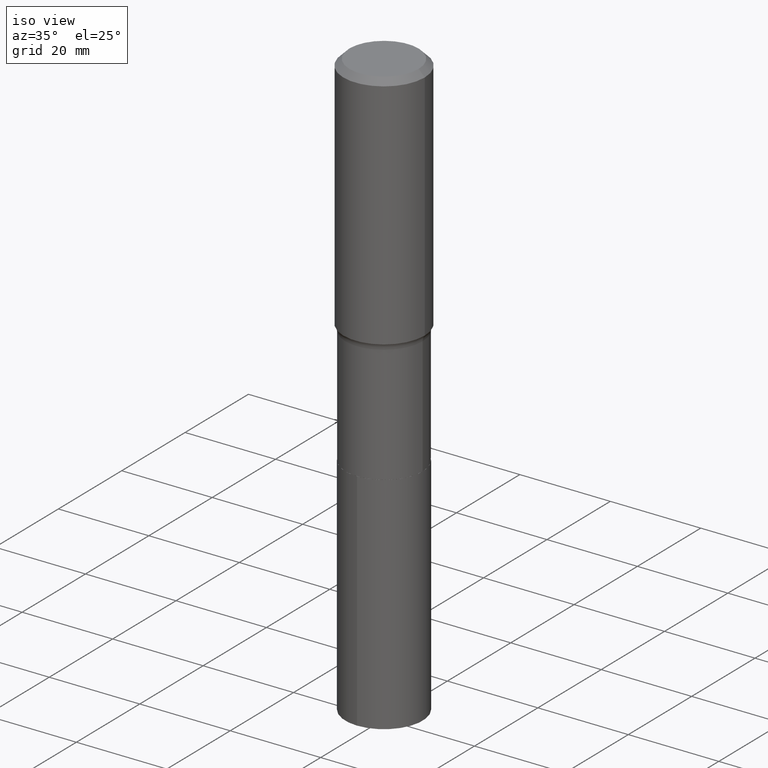
[diagram: clean part render]
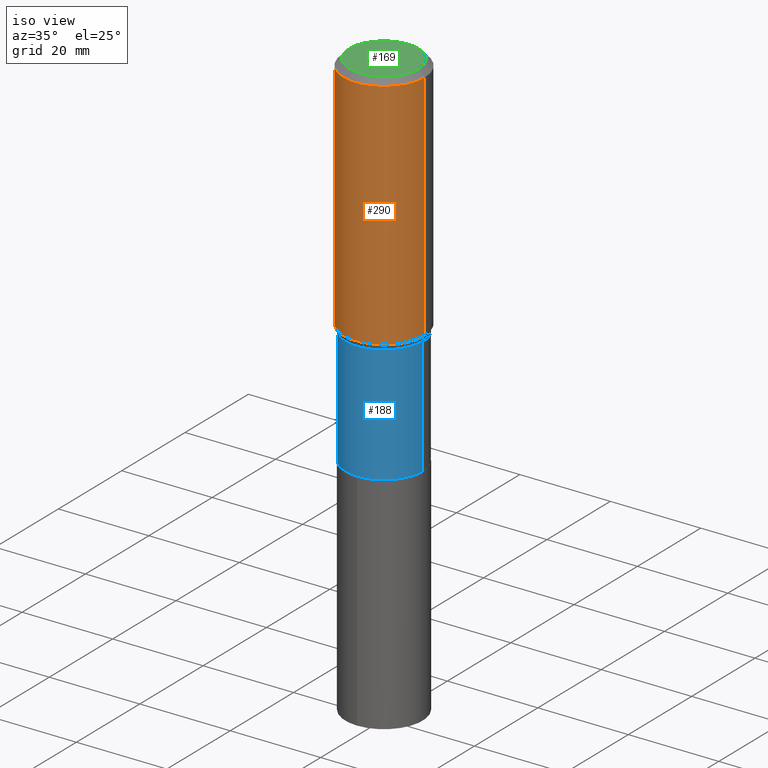
[diagram: same view with three faces highlighted in distinct colors, each labeled with its STEP entity id]
A machine part, iso view with three faces highlighted in distinct colors.
Their STEP definitions:

[orange] entity #290 — the highlighted cylindrical surface (partial cylindrical patch) has radius 9.0005 mm, axis along (-0, 0, 1).
#2 = DIRECTION ( 'NONE',  ( -2.445468806185136597E-29, 3.491481338843145583E-15, 1.000000000000000000 ) ) ;
#11 = CARTESIAN_POINT ( 'NONE',  ( 0.000000000000000000, 0.000000000000000000, 0.000000000000000000 ) ) ;
#13 = ORIENTED_EDGE ( 'NONE', *, *, #402, .F. ) ;
#22 = VERTEX_POINT ( 'NONE', #180 ) ;
#44 = VECTOR ( 'NONE', #407, 39.37007874015748143 ) ;
#51 = VERTEX_POINT ( 'NONE', #216 ) ;
#74 = CARTESIAN_POINT ( 'NONE',  ( 5.094538759496551369E-29, -7.273651155887488989E-15, -2.083256489148962221 ) ) ;
#80 = LINE ( 'NONE', #400, #172 ) ;
#98 = VERTEX_POINT ( 'NONE', #105 ) ;
#99 = ORIENTED_EDGE ( 'NONE', *, *, #389, .T. ) ;
#105 = CARTESIAN_POINT ( 'NONE',  ( -0.3543500000000002759, -4.755842971721572810E-15, -2.083256489148962221 ) ) ;
#116 = ORIENTED_EDGE ( 'NONE', *, *, #263, .T. ) ;
#119 = DIRECTION ( 'NONE',  ( 1.000000000000000000, -6.982962677686265922E-15, 4.876176775795935793E-29 ) ) ;
#136 = CIRCLE ( 'NONE', #194, 0.3543499999999999983 ) ;
#138 = VERTEX_POINT ( 'NONE', #426 ) ;
#154 = DIRECTION ( 'NONE',  ( 1.000000000000000000, -6.982962677686265922E-15, 0.000000000000000000 ) ) ;
#158 = DIRECTION ( 'NONE',  ( -2.445468806185136877E-29, 3.491481338843145188E-15, 1.000000000000000000 ) ) ;
#172 = VECTOR ( 'NONE', #158, 39.37007874015748143 ) ;
#180 = CARTESIAN_POINT ( 'NONE',  ( 0.3543499999999999983, -2.659993786700990565E-15, -0.05315250000000043551 ) ) ;
#194 = AXIS2_PLACEMENT_3D ( 'NONE', #195, #332, #335 ) ;
#195 = CARTESIAN_POINT ( 'NONE',  ( 1.299827807207565248E-30, -1.855809618628617968E-16, -0.05315250000000043551 ) ) ;
#216 = CARTESIAN_POINT ( 'NONE',  ( 0.3543500000000002759, -9.748063980725620445E-15, -2.083256489148962221 ) ) ;
#224 = AXIS2_PLACEMENT_3D ( 'NONE', #74, #269, #154 ) ;
#263 = EDGE_CURVE ( 'NONE', #98, #51, #422, .T. ) ;
#268 = LINE ( 'NONE', #271, #44 ) ;
#269 = DIRECTION ( 'NONE',  ( -2.445468806185136597E-29, 3.491481338843145583E-15, 1.000000000000000000 ) ) ;
#271 = CARTESIAN_POINT ( 'NONE',  ( 0.3543500000000001648, -2.474412824838129483E-15, 1.727873240503290590E-29 ) ) ;
#290 = ADVANCED_FACE ( 'NONE', ( #304 ), #443, .T. ) ;
#304 = FACE_OUTER_BOUND ( 'NONE', #349, .T. ) ;
#332 = DIRECTION ( 'NONE',  ( -2.445468806185136597E-29, 3.491481338843145583E-15, 1.000000000000000000 ) ) ;
#335 = DIRECTION ( 'NONE',  ( 1.000000000000000000, -6.982962677686266711E-15, 0.000000000000000000 ) ) ;
#349 = EDGE_LOOP ( 'NONE', ( #13, #116, #99, #438 ) ) ;
#358 = EDGE_CURVE ( 'NONE', #138, #22, #136, .T. ) ;
#389 = EDGE_CURVE ( 'NONE', #51, #22, #268, .T. ) ;
#400 = CARTESIAN_POINT ( 'NONE',  ( -0.3543500000000001648, 2.517808184165916180E-15, -1.743024649231826627E-29 ) ) ;
#402 = EDGE_CURVE ( 'NONE', #98, #138, #80, .T. ) ;
#407 = DIRECTION ( 'NONE',  ( -2.445468806185136877E-29, 3.491481338843145188E-15, 1.000000000000000000 ) ) ;
#410 = AXIS2_PLACEMENT_3D ( 'NONE', #11, #2, #119 ) ;
#422 = CIRCLE ( 'NONE', #224, 0.3543500000000002759 ) ;
#426 = CARTESIAN_POINT ( 'NONE',  ( -0.3543499999999999983, -1.211807874709259447E-15, -0.05315250000000043551 ) ) ;
#438 = ORIENTED_EDGE ( 'NONE', *, *, #358, .F. ) ;
#443 = CYLINDRICAL_SURFACE ( 'NONE', #410, 0.3543500000000001648 ) ;

[blue] entity #188 — the highlighted cylindrical surface (partial cylindrical patch) has radius 8.5331 mm, axis along (-0, 0, 1).
#10 = VERTEX_POINT ( 'NONE', #69 ) ;
#31 = DIRECTION ( 'NONE',  ( -2.445468806185136877E-29, 3.491481338843145188E-15, 1.000000000000000000 ) ) ;
#41 = FACE_OUTER_BOUND ( 'NONE', #244, .T. ) ;
#57 = ORIENTED_EDGE ( 'NONE', *, *, #462, .F. ) ;
#59 = ORIENTED_EDGE ( 'NONE', *, *, #64, .T. ) ;
#64 = EDGE_CURVE ( 'NONE', #112, #270, #292, .T. ) ;
#68 = CARTESIAN_POINT ( 'NONE',  ( -0.3359499999999999154, -6.849470987056543290E-15, -2.134300000000000086 ) ) ;
#69 = CARTESIAN_POINT ( 'NONE',  ( -0.3359500000000000819, -6.849470987056542502E-15, -3.156600000000000072 ) ) ;
#76 = DIRECTION ( 'NONE',  ( -2.445468806185136877E-29, 3.491481338843145188E-15, 1.000000000000000000 ) ) ;
#110 = LINE ( 'NONE', #191, #329 ) ;
#112 = VERTEX_POINT ( 'NONE', #327 ) ;
#135 = VECTOR ( 'NONE', #31, 39.37007874015748143 ) ;
#146 = CARTESIAN_POINT ( 'NONE',  ( 5.219364073040937564E-29, -7.451868621492925956E-15, -2.134300000000000086 ) ) ;
#188 = ADVANCED_FACE ( 'NONE', ( #41 ), #405, .T. ) ;
#191 = CARTESIAN_POINT ( 'NONE',  ( -0.3359500000000000264, 2.387068320786056762E-15, -1.652516243571135534E-29 ) ) ;
#201 = ORIENTED_EDGE ( 'NONE', *, *, #345, .T. ) ;
#211 = AXIS2_PLACEMENT_3D ( 'NONE', #328, #341, #284 ) ;
#214 = EDGE_CURVE ( 'NONE', #10, #340, #110, .T. ) ;
#244 = EDGE_LOOP ( 'NONE', ( #285, #201, #59, #57 ) ) ;
#262 = DIRECTION ( 'NONE',  ( 1.000000000000000000, -6.982962677686267499E-15, 0.000000000000000000 ) ) ;
#270 = VERTEX_POINT ( 'NONE', #440 ) ;
#272 = DIRECTION ( 'NONE',  ( 1.000000000000000000, -6.982962677686265922E-15, 4.876176775795935232E-29 ) ) ;
#284 = DIRECTION ( 'NONE',  ( 1.000000000000000000, -6.982962677686269866E-15, 0.000000000000000000 ) ) ;
#285 = ORIENTED_EDGE ( 'NONE', *, *, #214, .F. ) ;
#292 = LINE ( 'NONE', #364, #135 ) ;
#300 = DIRECTION ( 'NONE',  ( -2.445468806185136597E-29, 3.491481338843145583E-15, 1.000000000000000000 ) ) ;
#327 = CARTESIAN_POINT ( 'NONE',  ( 0.3359500000000000819, -1.336713630576097584E-14, -3.156600000000000072 ) ) ;
#328 = CARTESIAN_POINT ( 'NONE',  ( 7.719366833604001448E-29, -1.102120999419227336E-14, -3.156600000000000072 ) ) ;
#329 = VECTOR ( 'NONE', #76, 39.37007874015748143 ) ;
#340 = VERTEX_POINT ( 'NONE', #68 ) ;
#341 = DIRECTION ( 'NONE',  ( -2.445468806185136597E-29, 3.491481338843145583E-15, 1.000000000000000000 ) ) ;
#345 = EDGE_CURVE ( 'NONE', #10, #112, #359, .T. ) ;
#359 = CIRCLE ( 'NONE', #211, 0.3359500000000000819 ) ;
#364 = CARTESIAN_POINT ( 'NONE',  ( 0.3359500000000000264, -2.345926311568701298E-15, 1.638151587828644602E-29 ) ) ;
#401 = CARTESIAN_POINT ( 'NONE',  ( 0.000000000000000000, 0.000000000000000000, 0.000000000000000000 ) ) ;
#405 = CYLINDRICAL_SURFACE ( 'NONE', #465, 0.3359500000000000264 ) ;
#423 = CIRCLE ( 'NONE', #446, 0.3359499999999999154 ) ;
#432 = DIRECTION ( 'NONE',  ( -2.445468806185136597E-29, 3.491481338843145583E-15, 1.000000000000000000 ) ) ;
#440 = CARTESIAN_POINT ( 'NONE',  ( 0.3359499999999999154, -9.797794933061626860E-15, -2.134300000000000086 ) ) ;
#446 = AXIS2_PLACEMENT_3D ( 'NONE', #146, #432, #262 ) ;
#462 = EDGE_CURVE ( 'NONE', #340, #270, #423, .T. ) ;
#465 = AXIS2_PLACEMENT_3D ( 'NONE', #401, #300, #272 ) ;

[green] entity #169 — the highlighted planar face has unit normal (0, -0, -1).
#16 = EDGE_CURVE ( 'NONE', #173, #46, #160, .T. ) ;
#26 = AXIS2_PLACEMENT_3D ( 'NONE', #259, #155, #70 ) ;
#42 = AXIS2_PLACEMENT_3D ( 'NONE', #408, #223, #368 ) ;
#46 = VERTEX_POINT ( 'NONE', #296 ) ;
#70 = DIRECTION ( 'NONE',  ( 1.000000000000000000, -6.982962677686266711E-15, 4.876239486148337140E-29 ) ) ;
#148 = PLANE ( 'NONE',  #42 ) ;
#155 = DIRECTION ( 'NONE',  ( -2.445468806185136597E-29, 3.491481338843145583E-15, 1.000000000000000000 ) ) ;
#160 = CIRCLE ( 'NONE', #352, 0.3011975000000000069 ) ;
#163 = ORIENTED_EDGE ( 'NONE', *, *, #416, .T. ) ;
#169 = ADVANCED_FACE ( 'NONE', ( #264 ), #148, .F. ) ;
#173 = VERTEX_POINT ( 'NONE', #336 ) ;
#223 = DIRECTION ( 'NONE',  ( 2.438088387897960049E-29, -3.491481338843145188E-15, -1.000000000000000000 ) ) ;
#248 = CIRCLE ( 'NONE', #26, 0.3011975000000000069 ) ;
#259 = CARTESIAN_POINT ( 'NONE',  ( -1.002970424325033577E-46, 1.431975951230896212E-32, 4.101342130344485961E-18 ) ) ;
#264 = FACE_OUTER_BOUND ( 'NONE', #312, .T. ) ;
#296 = CARTESIAN_POINT ( 'NONE',  ( -0.3011975000000000069, 2.196041382043837860E-15, 4.101342130329452923E-18 ) ) ;
#312 = EDGE_LOOP ( 'NONE', ( #163, #415 ) ) ;
#320 = CARTESIAN_POINT ( 'NONE',  ( -1.002970424325033577E-46, 1.431975951230896212E-32, 4.101342130344485961E-18 ) ) ;
#336 = CARTESIAN_POINT ( 'NONE',  ( 0.3011975000000000069, -2.341481636528497322E-15, 4.101342130360026675E-18 ) ) ;
#352 = AXIS2_PLACEMENT_3D ( 'NONE', #320, #466, #394 ) ;
#368 = DIRECTION ( 'NONE',  ( -1.000000000000000000, 6.982962677686265922E-15, -4.876176775795935793E-29 ) ) ;
#394 = DIRECTION ( 'NONE',  ( 1.000000000000000000, -6.982962677686266711E-15, 4.876239486148337140E-29 ) ) ;
#408 = CARTESIAN_POINT ( 'NONE',  ( -5.014852121625167883E-47, 7.159879756154481060E-33, 2.050671065172242981E-18 ) ) ;
#415 = ORIENTED_EDGE ( 'NONE', *, *, #16, .T. ) ;
#416 = EDGE_CURVE ( 'NONE', #46, #173, #248, .T. ) ;
#466 = DIRECTION ( 'NONE',  ( -2.445468806185136597E-29, 3.491481338843145583E-15, 1.000000000000000000 ) ) ;